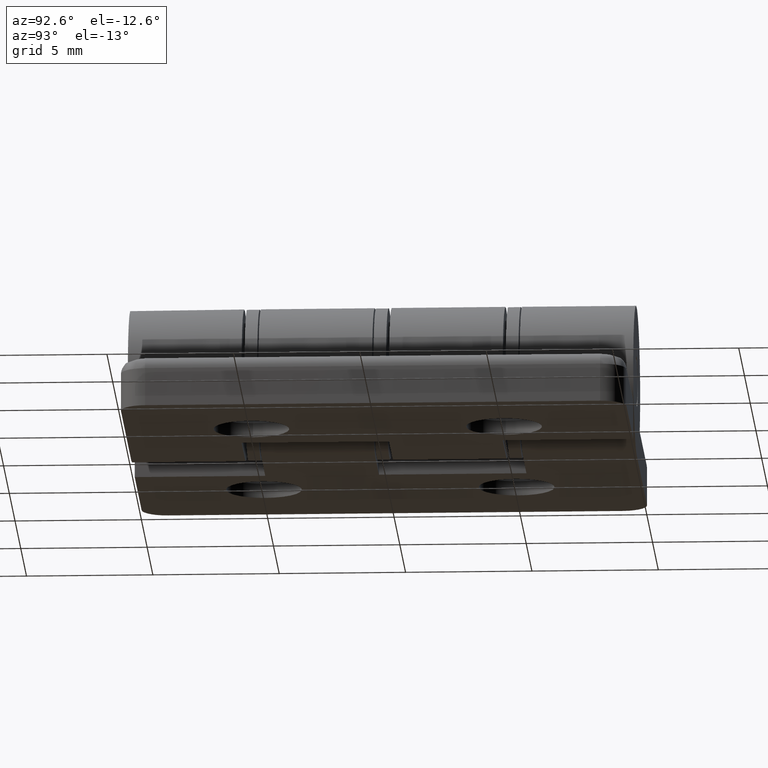
[diagram: clean part render]
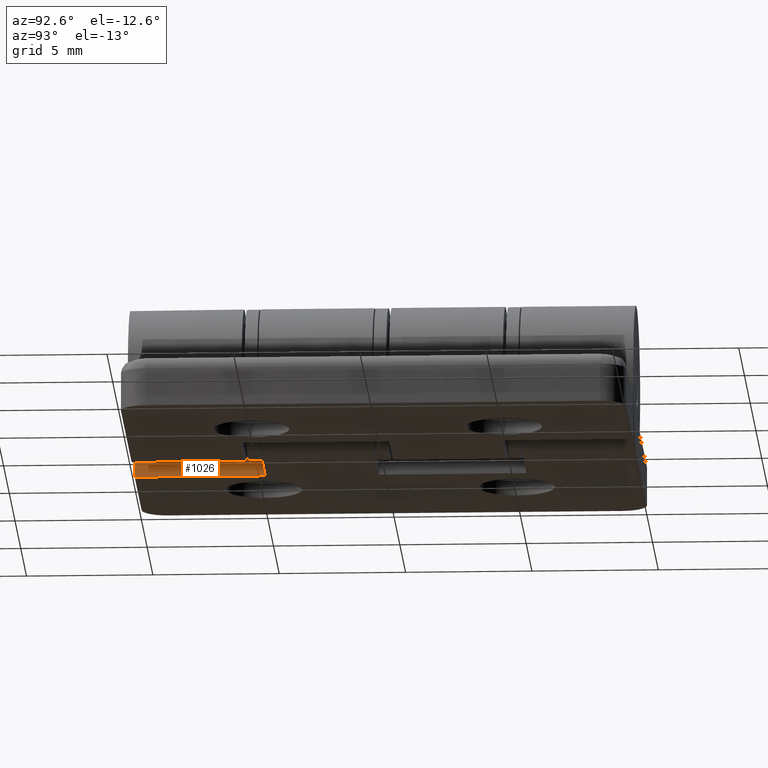
[diagram: same view with one face highlighted and labeled with its STEP entity id]
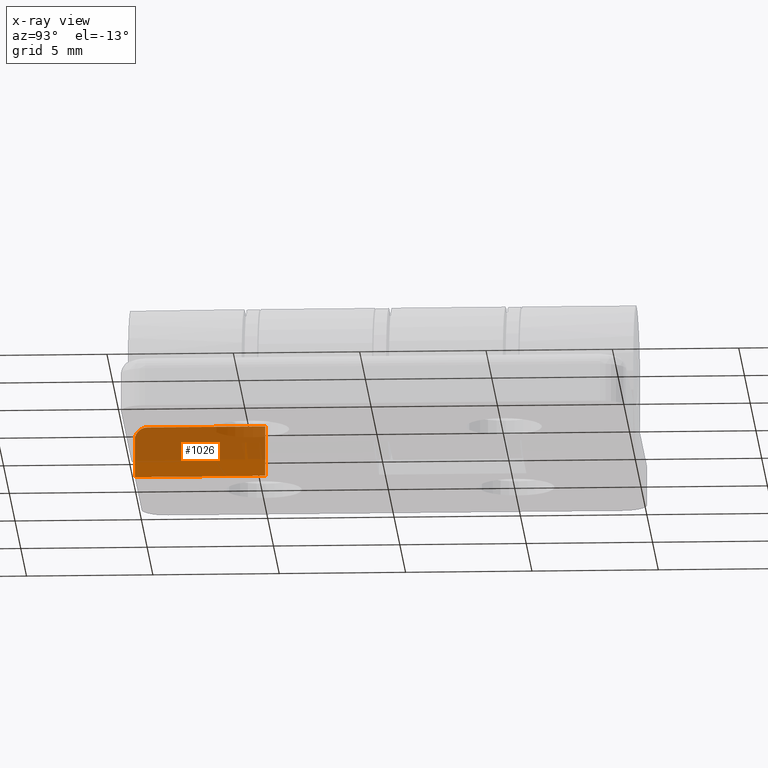
[diagram: x-ray of the same camera — body ghosted, the highlighted face saturated]
A machine part, auxiliary view. The second image highlights one B-rep face of the part: STEP entity #1026.
The next image is the same camera in x-ray: the body ghosted, the highlighted face saturated — about 66% of this face is hidden behind the body in this view.
In plain terms, the highlighted planar face has unit normal (-1, -0, 0).
Its self-contained STEP definition (entity closure, byte-faithful):
#83=PLANE('',#1115);
#128=FACE_OUTER_BOUND('',#199,.T.);
#199=EDGE_LOOP('',(#772,#773,#774,#775,#776,#777));
#294=LINE('',#1615,#360);
#295=LINE('',#1618,#361);
#308=LINE('',#1661,#374);
#309=LINE('',#1663,#375);
#310=LINE('',#1664,#376);
#360=VECTOR('',#1254,4.49999999999999);
#361=VECTOR('',#1257,0.165000000000006);
#374=VECTOR('',#1300,1.5);
#375=VECTOR('',#1301,5.165);
#376=VECTOR('',#1302,2.);
#420=CIRCLE('',#1088,0.5);
#486=VERTEX_POINT('',#1556);
#487=VERTEX_POINT('',#1557);
#498=VERTEX_POINT('',#1614);
#499=VERTEX_POINT('',#1617);
#514=VERTEX_POINT('',#1660);
#515=VERTEX_POINT('',#1662);
#582=EDGE_CURVE('',#486,#487,#420,.T.);
#598=EDGE_CURVE('',#487,#498,#294,.T.);
#600=EDGE_CURVE('',#498,#499,#295,.T.);
#620=EDGE_CURVE('',#514,#486,#308,.T.);
#621=EDGE_CURVE('',#515,#514,#309,.T.);
#622=EDGE_CURVE('',#515,#499,#310,.T.);
#772=ORIENTED_EDGE('',*,*,#582,.F.);
#773=ORIENTED_EDGE('',*,*,#620,.F.);
#774=ORIENTED_EDGE('',*,*,#621,.F.);
#775=ORIENTED_EDGE('',*,*,#622,.T.);
#776=ORIENTED_EDGE('',*,*,#600,.F.);
#777=ORIENTED_EDGE('',*,*,#598,.F.);
#1026=ADVANCED_FACE('',(#128),#83,.F.);
#1088=AXIS2_PLACEMENT_3D('',#1558,#1224,#1225);
#1115=AXIS2_PLACEMENT_3D('',#1659,#1298,#1299);
#1224=DIRECTION('center_axis',(-1.,-1.2335811384724E-16,0.));
#1225=DIRECTION('ref_axis',(-7.85046229341887E-17,0.707106781186547,0.707106781186548));
#1254=DIRECTION('',(0.,0.,-1.));
#1257=DIRECTION('',(0.,0.,-1.));
#1298=DIRECTION('center_axis',(-1.,-1.2335811384724E-16,0.));
#1299=DIRECTION('ref_axis',(0.,0.,1.));
#1300=DIRECTION('',(-1.2335811384724E-16,1.,0.));
#1301=DIRECTION('',(0.,0.,1.));
#1302=DIRECTION('',(-1.2335811384724E-16,1.,0.));
#1556=CARTESIAN_POINT('',(-3.,1.5,10.));
#1557=CARTESIAN_POINT('',(-3.,2.,9.5));
#1558=CARTESIAN_POINT('Origin',(-3.,1.5,9.5));
#1614=CARTESIAN_POINT('',(-2.99999999999999,2.,5.00000000000001));
#1615=CARTESIAN_POINT('',(-3.,2.,2.4175));
#1617=CARTESIAN_POINT('',(-3.,2.,4.835));
#1618=CARTESIAN_POINT('',(-3.,2.,2.4175));
#1659=CARTESIAN_POINT('Origin',(-3.,-3.67394039744206E-16,4.835));
#1660=CARTESIAN_POINT('',(-3.,-3.67394039744206E-16,10.));
#1661=CARTESIAN_POINT('',(-3.,1.5,10.));
#1662=CARTESIAN_POINT('',(-3.,-3.67394039744206E-16,4.835));
#1663=CARTESIAN_POINT('',(-3.,-3.67394039744206E-16,2.4175));
#1664=CARTESIAN_POINT('',(-3.,-3.67394039744206E-16,4.835));